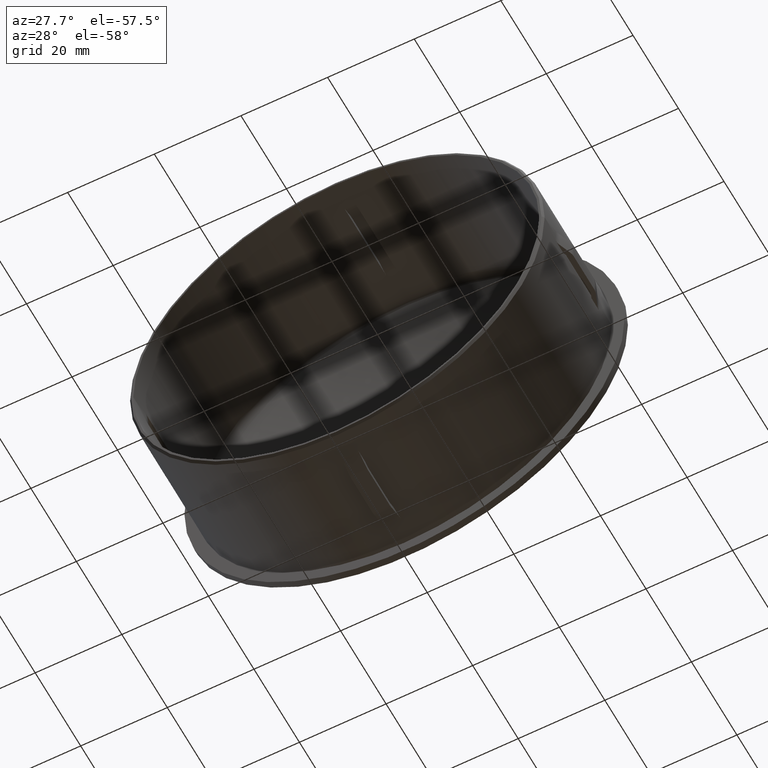
[diagram: clean part render]
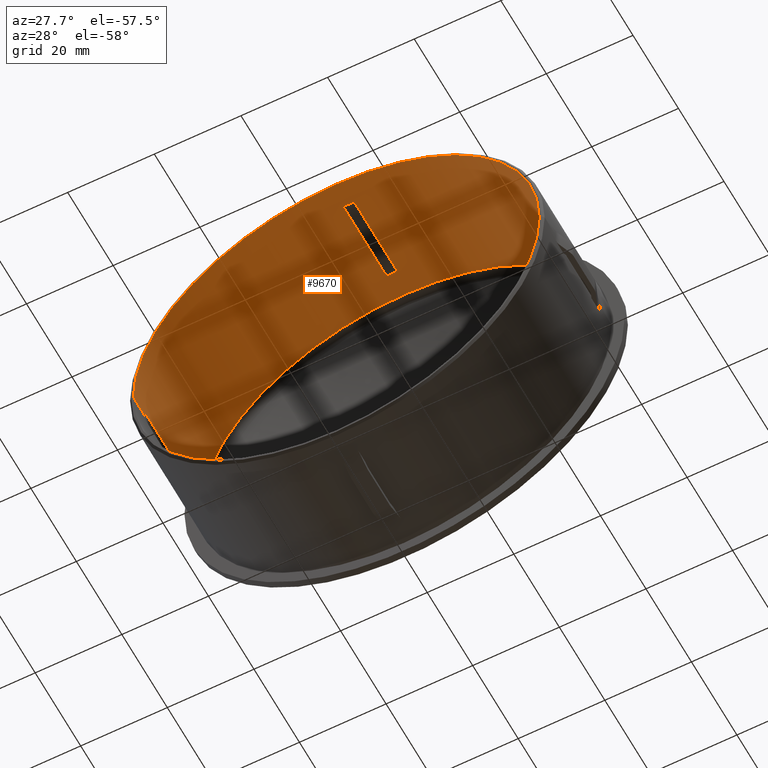
[diagram: same view with one face highlighted and labeled with its STEP entity id]
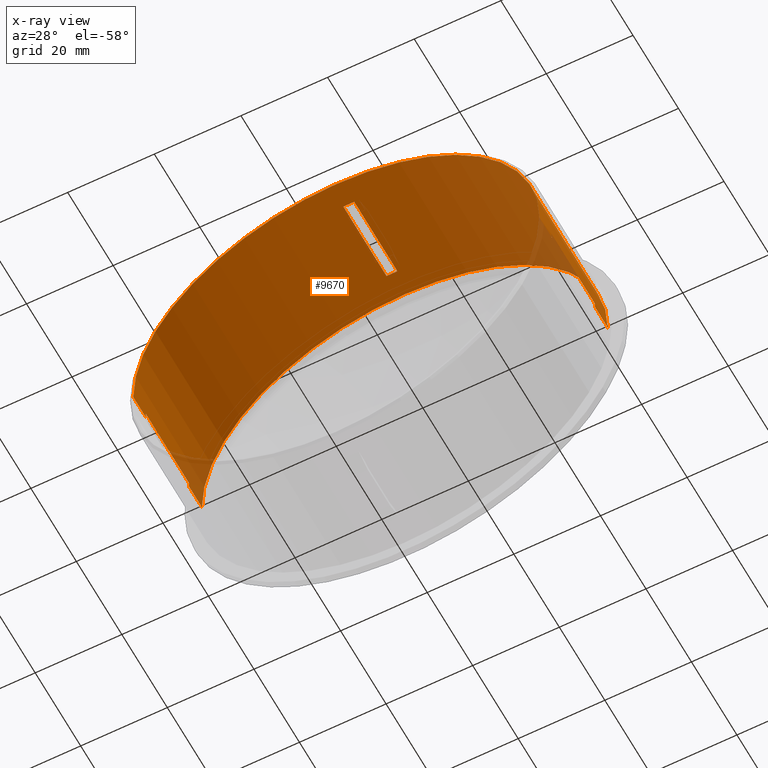
[diagram: x-ray of the same camera — body ghosted, the highlighted face saturated]
A machine part, auxiliary view. The second image highlights one B-rep face of the part: STEP entity #9670.
The next image is the same camera in x-ray: the body ghosted, the highlighted face saturated — about 4% of this face is hidden behind the body in this view.
In plain terms, the highlighted cylindrical surface (partial cylindrical patch) has radius 46.85 mm, axis along (0, -1, -0).
Its self-contained STEP definition (entity closure, byte-faithful):
#75 = CARTESIAN_POINT ( 'NONE',  ( 1.249999999999996400, 5.499999999999768200, 46.83332147093543800 ) ) ;
#223 = CARTESIAN_POINT ( 'NONE',  ( 46.83332147093563000, 24.50000000000000400, 1.250000000000002700 ) ) ;
#413 = AXIS2_PLACEMENT_3D ( 'NONE', #4507, #4313, #4459 ) ;
#603 = CARTESIAN_POINT ( 'NONE',  ( 46.85000000000003000, -6.680958621643916600E-016, 0.0000000000000000000 ) ) ;
#704 = DIRECTION ( 'NONE',  ( 1.000000000000000000, 5.183805477838921200E-015, 0.0000000000000000000 ) ) ;
#996 = LINE ( 'NONE', #10839, #3719 ) ;
#1116 = CARTESIAN_POINT ( 'NONE',  ( -46.84999999999987400, 30.15087385627621000, 5.737470254005351000E-015 ) ) ;
#1135 = CARTESIAN_POINT ( 'NONE',  ( -46.84999999999961800, 5.499999999999520400, 5.737470254005334400E-015 ) ) ;
#1280 = VERTEX_POINT ( 'NONE', #3944 ) ;
#1703 = VECTOR ( 'NONE', #8720, 1000.000000000000000 ) ;
#1708 = LINE ( 'NONE', #1800, #12639 ) ;
#1758 = EDGE_CURVE ( 'NONE', #10538, #14666, #7454, .T. ) ;
#1773 = ORIENTED_EDGE ( 'NONE', *, *, #11491, .F. ) ;
#1800 = CARTESIAN_POINT ( 'NONE',  ( -46.84999999999990900, 40.49999999999975100, 5.737470254005339200E-015 ) ) ;
#1847 = EDGE_CURVE ( 'NONE', #11582, #13779, #1708, .T. ) ;
#1944 = VERTEX_POINT ( 'NONE', #12438 ) ;
#1987 = VERTEX_POINT ( 'NONE', #6735 ) ;
#2186 = ORIENTED_EDGE ( 'NONE', *, *, #11385, .T. ) ;
#2211 = EDGE_CURVE ( 'NONE', #2888, #12880, #14772, .T. ) ;
#2343 = CARTESIAN_POINT ( 'NONE',  ( 1.886883983622748700E-013, 5.499999999999762000, 0.0000000000000000000 ) ) ;
#2408 = ORIENTED_EDGE ( 'NONE', *, *, #8468, .T. ) ;
#2472 = DIRECTION ( 'NONE',  ( 5.169545160610235800E-015, -1.000000000000000000, -0.0000000000000000000 ) ) ;
#2623 = CARTESIAN_POINT ( 'NONE',  ( -46.84999999999990900, 40.49999999999975100, 5.737470254005339200E-015 ) ) ;
#2691 = VERTEX_POINT ( 'NONE', #75 ) ;
#2833 = DIRECTION ( 'NONE',  ( 5.169545160610235800E-015, -1.000000000000000000, -0.0000000000000000000 ) ) ;
#2877 = CIRCLE ( 'NONE', #4095, 46.84999999999981000 ) ;
#2888 = VERTEX_POINT ( 'NONE', #4762 ) ;
#2923 = DIRECTION ( 'NONE',  ( 6.320148377769855400E-016, -1.000000000000000000, 0.0000000000000000000 ) ) ;
#2938 = ORIENTED_EDGE ( 'NONE', *, *, #2211, .T. ) ;
#2998 = CARTESIAN_POINT ( 'NONE',  ( 2.171208967456312000E-013, -2.428612866367529900E-013, 0.0000000000000000000 ) ) ;
#3011 = CARTESIAN_POINT ( 'NONE',  ( 46.84999999999992300, 40.50000000000023400, 0.0000000000000000000 ) ) ;
#3021 = CARTESIAN_POINT ( 'NONE',  ( 6.125459271374633700E-014, 30.15087385627645500, 0.0000000000000000000 ) ) ;
#3245 = CIRCLE ( 'NONE', #3845, 46.84999999999990900 ) ;
#3272 = EDGE_LOOP ( 'NONE', ( #12987, #9834, #5343, #6789, #8643, #1773, #12709, #6864, #6896, #10873, #7017, #2186 ) ) ;
#3690 = CARTESIAN_POINT ( 'NONE',  ( -46.84999999999960400, -4.850544774113416400E-013, 5.737470254005332900E-015 ) ) ;
#3719 = VECTOR ( 'NONE', #2833, 1000.000000000000000 ) ;
#3845 = AXIS2_PLACEMENT_3D ( 'NONE', #11534, #11390, #6869 ) ;
#3944 = CARTESIAN_POINT ( 'NONE',  ( 46.83332147093565100, 5.500000000019558600, 1.250000000000002700 ) ) ;
#3971 = DIRECTION ( 'NONE',  ( 5.169545160610235800E-015, -1.000000000000000000, -0.0000000000000000000 ) ) ;
#4095 = AXIS2_PLACEMENT_3D ( 'NONE', #2343, #12740, #13733 ) ;
#4172 = EDGE_CURVE ( 'NONE', #8972, #1944, #11411, .T. ) ;
#4313 = DIRECTION ( 'NONE',  ( 5.169545160610235800E-015, -1.000000000000000000, -0.0000000000000000000 ) ) ;
#4353 = EDGE_CURVE ( 'NONE', #1944, #11582, #2877, .T. ) ;
#4364 = DIRECTION ( 'NONE',  ( 5.169545160610235800E-015, -1.000000000000000000, -0.0000000000000000000 ) ) ;
#4459 = DIRECTION ( 'NONE',  ( 1.000000000000000000, 5.165291886846650400E-015, 0.0000000000000000000 ) ) ;
#4463 = LINE ( 'NONE', #5498, #6595 ) ;
#4507 = CARTESIAN_POINT ( 'NONE',  ( 1.886883983622748700E-013, 5.499999999999762000, 0.0000000000000000000 ) ) ;
#4762 = CARTESIAN_POINT ( 'NONE',  ( -1.249999999999984700, 24.49999999999967300, 46.83332147093544500 ) ) ;
#4965 = CARTESIAN_POINT ( 'NONE',  ( 46.83332147093559400, 95.87925811096357600, 1.250000000000002700 ) ) ;
#5020 = CARTESIAN_POINT ( 'NONE',  ( 9.046704031068041700E-014, 24.49999999999976200, 0.0000000000000000000 ) ) ;
#5040 = EDGE_CURVE ( 'NONE', #11397, #2691, #4463, .T. ) ;
#5218 = VECTOR ( 'NONE', #8617, 1000.000000000000000 ) ;
#5225 = DIRECTION ( 'NONE',  ( 1.000000000000000000, 5.183805477838918800E-015, 0.0000000000000000000 ) ) ;
#5343 = ORIENTED_EDGE ( 'NONE', *, *, #14484, .T. ) ;
#5475 = EDGE_CURVE ( 'NONE', #8013, #13779, #5686, .T. ) ;
#5498 = CARTESIAN_POINT ( 'NONE',  ( 1.249999999999939600, 95.87925811096354800, 46.83332147093544500 ) ) ;
#5523 = CYLINDRICAL_SURFACE ( 'NONE', #6802, 46.84999999999991600 ) ;
#5686 = CIRCLE ( 'NONE', #10188, 46.84999999999981700 ) ;
#6234 = CIRCLE ( 'NONE', #9020, 46.84999999999993000 ) ;
#6252 = DIRECTION ( 'NONE',  ( 1.000000000000000000, 5.183805477838921200E-015, 0.0000000000000000000 ) ) ;
#6324 = CARTESIAN_POINT ( 'NONE',  ( -46.83332147093559400, 95.87925811096333500, 1.250000000000002700 ) ) ;
#6595 = VECTOR ( 'NONE', #10028, 1000.000000000000000 ) ;
#6689 = DIRECTION ( 'NONE',  ( 1.000000000000000000, 5.165291886846650400E-015, 0.0000000000000000000 ) ) ;
#6735 = CARTESIAN_POINT ( 'NONE',  ( -46.84999999999981000, 24.49999999999952000, 5.737470254005345500E-015 ) ) ;
#6789 = ORIENTED_EDGE ( 'NONE', *, *, #1758, .T. ) ;
#6802 = AXIS2_PLACEMENT_3D ( 'NONE', #8602, #9779, #14386 ) ;
#6864 = ORIENTED_EDGE ( 'NONE', *, *, #5475, .T. ) ;
#6869 = DIRECTION ( 'NONE',  ( 1.000000000000000000, 5.183805477838921200E-015, 0.0000000000000000000 ) ) ;
#6896 = ORIENTED_EDGE ( 'NONE', *, *, #1847, .F. ) ;
#7017 = ORIENTED_EDGE ( 'NONE', *, *, #4172, .F. ) ;
#7403 = ORIENTED_EDGE ( 'NONE', *, *, #10921, .F. ) ;
#7454 = CIRCLE ( 'NONE', #8926, 46.84999999999990900 ) ;
#7847 = EDGE_CURVE ( 'NONE', #12226, #1987, #10477, .T. ) ;
#7888 = LINE ( 'NONE', #3011, #5218 ) ;
#7892 = EDGE_CURVE ( 'NONE', #8101, #8013, #996, .T. ) ;
#8013 = VERTEX_POINT ( 'NONE', #603 ) ;
#8101 = VERTEX_POINT ( 'NONE', #8303 ) ;
#8161 = CARTESIAN_POINT ( 'NONE',  ( -46.83332147093543100, 24.49999999999952000, 1.250000000000003100 ) ) ;
#8303 = CARTESIAN_POINT ( 'NONE',  ( 46.84999999999999400, 5.500000000000004400, 0.0000000000000000000 ) ) ;
#8392 = CIRCLE ( 'NONE', #12275, 46.84999999999981000 ) ;
#8468 = EDGE_CURVE ( 'NONE', #11397, #2888, #3245, .T. ) ;
#8602 = CARTESIAN_POINT ( 'NONE',  ( 7.754317740915432600E-015, 40.49999999999999300, 0.0000000000000000000 ) ) ;
#8617 = DIRECTION ( 'NONE',  ( 5.169545160610235800E-015, -1.000000000000000000, -0.0000000000000000000 ) ) ;
#8633 = CARTESIAN_POINT ( 'NONE',  ( -1.249999999999939600, 95.87925811096330600, 46.83332147093544500 ) ) ;
#8643 = ORIENTED_EDGE ( 'NONE', *, *, #9968, .T. ) ;
#8673 = VERTEX_POINT ( 'NONE', #10591 ) ;
#8720 = DIRECTION ( 'NONE',  ( -6.320148377769857300E-016, -1.000000000000000000, 0.0000000000000000000 ) ) ;
#8854 = AXIS2_PLACEMENT_3D ( 'NONE', #5020, #13168, #704 ) ;
#8926 = AXIS2_PLACEMENT_3D ( 'NONE', #10775, #3971, #6252 ) ;
#8927 = DIRECTION ( 'NONE',  ( 1.000000000000000000, 5.169545160610235800E-015, 0.0000000000000000000 ) ) ;
#8972 = VERTEX_POINT ( 'NONE', #8161 ) ;
#9020 = AXIS2_PLACEMENT_3D ( 'NONE', #3021, #12052, #5225 ) ;
#9644 = FACE_OUTER_BOUND ( 'NONE', #3272, .T. ) ;
#9670 = ADVANCED_FACE ( 'NONE', ( #9644, #12519 ), #5523, .F. ) ;
#9779 = DIRECTION ( 'NONE',  ( 5.169545160610235800E-015, -1.000000000000000000, -0.0000000000000000000 ) ) ;
#9834 = ORIENTED_EDGE ( 'NONE', *, *, #10820, .F. ) ;
#9968 = EDGE_CURVE ( 'NONE', #14666, #1280, #11055, .T. ) ;
#9987 = VECTOR ( 'NONE', #2923, 1000.000000000000000 ) ;
#10028 = DIRECTION ( 'NONE',  ( 6.320148377769855400E-016, -1.000000000000000000, 0.0000000000000000000 ) ) ;
#10031 = ORIENTED_EDGE ( 'NONE', *, *, #5040, .F. ) ;
#10188 = AXIS2_PLACEMENT_3D ( 'NONE', #2998, #12580, #8927 ) ;
#10477 = LINE ( 'NONE', #2623, #10826 ) ;
#10532 = VECTOR ( 'NONE', #12066, 1000.000000000000000 ) ;
#10538 = VERTEX_POINT ( 'NONE', #11440 ) ;
#10591 = CARTESIAN_POINT ( 'NONE',  ( 46.84999999999999400, 30.15087385627669600, 0.0000000000000000000 ) ) ;
#10775 = CARTESIAN_POINT ( 'NONE',  ( 9.046704031068041700E-014, 24.49999999999976200, 0.0000000000000000000 ) ) ;
#10820 = EDGE_CURVE ( 'NONE', #8673, #12226, #6234, .T. ) ;
#10826 = VECTOR ( 'NONE', #2472, 1000.000000000000000 ) ;
#10839 = CARTESIAN_POINT ( 'NONE',  ( 46.84999999999992300, 40.50000000000023400, 0.0000000000000000000 ) ) ;
#10873 = ORIENTED_EDGE ( 'NONE', *, *, #4353, .F. ) ;
#10921 = EDGE_CURVE ( 'NONE', #2691, #12880, #8392, .T. ) ;
#11055 = LINE ( 'NONE', #4965, #9987 ) ;
#11161 = CARTESIAN_POINT ( 'NONE',  ( 1.886883983622748700E-013, 5.499999999999762000, 0.0000000000000000000 ) ) ;
#11243 = EDGE_LOOP ( 'NONE', ( #2938, #7403, #10031, #2408 ) ) ;
#11385 = EDGE_CURVE ( 'NONE', #8972, #1987, #14610, .T. ) ;
#11390 = DIRECTION ( 'NONE',  ( 5.169545160610235800E-015, -1.000000000000000000, -0.0000000000000000000 ) ) ;
#11397 = VERTEX_POINT ( 'NONE', #12244 ) ;
#11411 = LINE ( 'NONE', #6324, #10532 ) ;
#11440 = CARTESIAN_POINT ( 'NONE',  ( 46.84999999999999400, 24.50000000000000400, 0.0000000000000000000 ) ) ;
#11491 = EDGE_CURVE ( 'NONE', #8101, #1280, #12113, .T. ) ;
#11534 = CARTESIAN_POINT ( 'NONE',  ( 9.046704031068041700E-014, 24.49999999999976200, 0.0000000000000000000 ) ) ;
#11582 = VERTEX_POINT ( 'NONE', #1135 ) ;
#12052 = DIRECTION ( 'NONE',  ( 5.169545160610235800E-015, -1.000000000000000000, -0.0000000000000000000 ) ) ;
#12066 = DIRECTION ( 'NONE',  ( -6.320148377769857300E-016, -1.000000000000000000, 0.0000000000000000000 ) ) ;
#12113 = CIRCLE ( 'NONE', #413, 46.84999999999981000 ) ;
#12226 = VERTEX_POINT ( 'NONE', #1116 ) ;
#12244 = CARTESIAN_POINT ( 'NONE',  ( 1.250000000000042400, 24.49999999999976900, 46.83332147093553700 ) ) ;
#12275 = AXIS2_PLACEMENT_3D ( 'NONE', #11161, #4364, #6689 ) ;
#12438 = CARTESIAN_POINT ( 'NONE',  ( -46.83332147093565100, 5.499999999999810800, 1.250000000000002700 ) ) ;
#12519 = FACE_BOUND ( 'NONE', #11243, .T. ) ;
#12580 = DIRECTION ( 'NONE',  ( 5.169545160610235800E-015, -1.000000000000000000, -0.0000000000000000000 ) ) ;
#12639 = VECTOR ( 'NONE', #14499, 1000.000000000000000 ) ;
#12709 = ORIENTED_EDGE ( 'NONE', *, *, #7892, .T. ) ;
#12740 = DIRECTION ( 'NONE',  ( 5.169545160610235800E-015, -1.000000000000000000, -0.0000000000000000000 ) ) ;
#12880 = VERTEX_POINT ( 'NONE', #13058 ) ;
#12987 = ORIENTED_EDGE ( 'NONE', *, *, #7847, .F. ) ;
#13058 = CARTESIAN_POINT ( 'NONE',  ( -1.249999999999839200, 5.499999999999755800, 46.83332147093543100 ) ) ;
#13168 = DIRECTION ( 'NONE',  ( 5.169545160610235800E-015, -1.000000000000000000, -0.0000000000000000000 ) ) ;
#13733 = DIRECTION ( 'NONE',  ( 1.000000000000000000, 5.165291886846650400E-015, 0.0000000000000000000 ) ) ;
#13779 = VERTEX_POINT ( 'NONE', #3690 ) ;
#14386 = DIRECTION ( 'NONE',  ( 1.000000000000000000, 5.183805477838920400E-015, 0.0000000000000000000 ) ) ;
#14484 = EDGE_CURVE ( 'NONE', #8673, #10538, #7888, .T. ) ;
#14499 = DIRECTION ( 'NONE',  ( 5.169545160610235800E-015, -1.000000000000000000, -0.0000000000000000000 ) ) ;
#14610 = CIRCLE ( 'NONE', #8854, 46.84999999999990900 ) ;
#14666 = VERTEX_POINT ( 'NONE', #223 ) ;
#14772 = LINE ( 'NONE', #8633, #1703 ) ;